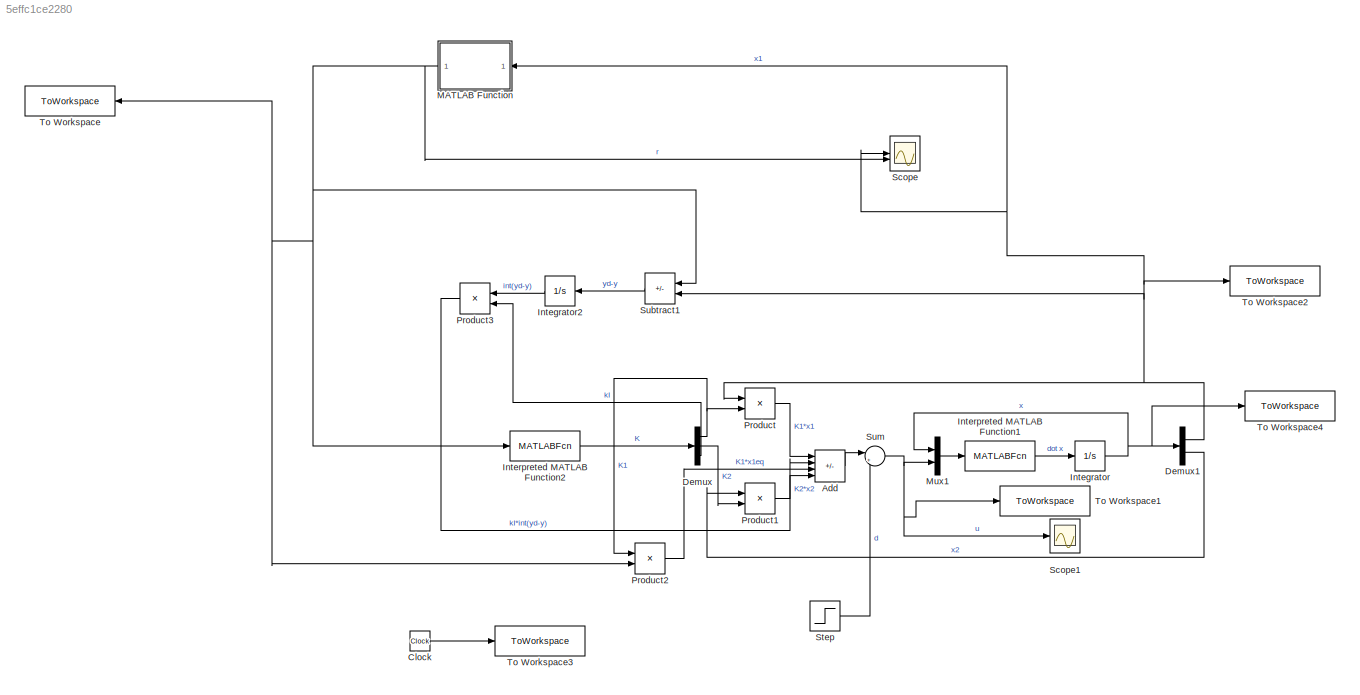
MODEL slx_5effc1ce2280
KIND model
CONFIG AbsTol = auto
CONFIG EnableMultiTasking = off
CONFIG FixedStep = auto
CONFIG MaxStep = auto
CONFIG MinStep = auto
CONFIG RelTol = 1e-3
CONFIG SampleTimeConstraint = Unconstrained
CONFIG SolverName = VariableStepAuto
CONFIG StartTime = 0.0
CONFIG StopTime = 10.0
BLOCK [Sum] Add
  IconShape = rectangular
  Inputs = --+-
BLOCK [Clock] Clock
BLOCK [Demux] Demux
  Outputs = 3
BLOCK [Demux] Demux1
  Outputs = 2
BLOCK [Integrator] Integrator
BLOCK [Integrator] Integrator2
  NameLocation = top
BLOCK [MATLABFcn] Interpreted MATLAB Function1
  MATLABFcn = GS_sys
  OutputDimensions = 2
BLOCK [MATLABFcn] Interpreted MATLAB Function2
  MATLABFcn = GS_compute_gains_LQI
  OutputDimensions = 3
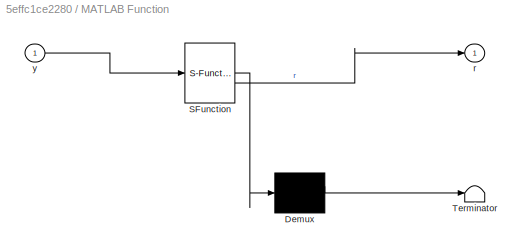
BLOCK [SubSystem] MATLAB Function
  ErrorFcn = Stateflow.Translate.translate
  NameLocation = top
  PermitHierarchicalResolution = ExplicitOnly
  SFBlockType = MATLAB Function
  TreatAsAtomicUnit = on
BLOCK [Demux] MATLAB Function/ Demux 
  Outputs = 1
BLOCK [S-Function] MATLAB Function/ SFunction 
  EnableBusSupport = on
  FunctionName = sf_sfun
  PortCounts = [1 2]
  SFcnIsStateOwnerBlock = off
  SFunctionDeploymentMode = off
  Tag = Stateflow S-Function 2
BLOCK [Terminator] MATLAB Function/ Terminator 
BLOCK [Outport] MATLAB Function/r
BLOCK [Inport] MATLAB Function/y
BLOCK [Mux] Mux1
  DisplayOption = bar
  Inputs = 2
BLOCK [Product] Product
BLOCK [Product] Product1
BLOCK [Product] Product2
BLOCK [Product] Product3
  NameLocation = top
BLOCK [Scope] Scope
  Floating = off
  NumInputPorts = 2
  ScopeSpecificationString = Simulink.scopes.TimeScopeBlockCfg('CurrentConfiguration', extmgr.ConfigurationSet(extmgr.Configuration('Core','General UI',true),extmgr.Configuration('Core','Source UI',true),extmgr.Configuration('Sources','WiredSimulink',true,'DataLoggingVariableName','ScopeData1'),extmgr.Configuration('Visuals','Time Domain',true,'SerializedDisplays',{struct('MinYLimReal','-20.98638','MaxYLimReal','123.03633','Y...<+1470ch>
BLOCK [Scope] Scope1
  Floating = off
  NumInputPorts = 1
  ScopeSpecificationString = Simulink.scopes.TimeScopeBlockCfg('CurrentConfiguration', extmgr.ConfigurationSet(extmgr.Configuration('Core','General UI',true),extmgr.Configuration('Core','Source UI',true),extmgr.Configuration('Sources','WiredSimulink',true),extmgr.Configuration('Visuals','Time Domain',true,'SerializedDisplays',{struct('MinYLimReal','-13.8979','MaxYLimReal','38.36756','YLabelReal','','MinYLimMag','0.00000','Max...<+1356ch>
BLOCK [Step] Step
  After = 350
  SampleTime = 0
  Time = 5
BLOCK [Sum] Subtract1
  IconShape = rectangular
  Inputs = +-
  NameLocation = top
BLOCK [Sum] Sum
  Inputs = |++
BLOCK [ToWorkspace] To Workspace
  FixptAsFi = on
  MaxDataPoints = inf
  SampleTime = -1
  VariableName = r
BLOCK [ToWorkspace] To Workspace1
  FixptAsFi = on
  MaxDataPoints = inf
  SampleTime = -1
  VariableName = u
BLOCK [ToWorkspace] To Workspace2
  FixptAsFi = on
  MaxDataPoints = inf
  SampleTime = -1
  VariableName = y
BLOCK [ToWorkspace] To Workspace3
  FixptAsFi = on
  MaxDataPoints = inf
  SampleTime = -1
  VariableName = t
BLOCK [ToWorkspace] To Workspace4
  FixptAsFi = on
  MaxDataPoints = inf
  SampleTime = -1
  VariableName = x
LINE Add:1 -> Sum:1
LINE Clock:1 -> To Workspace3:1
NET Demux1:1 -> MATLAB Function:1, Product:1, Scope:1, Subtract1:2, To Workspace2:1
LINE Demux1:2 -> Product1:1
NET Demux:1 -> Product2:1, Product:2
LINE Demux:2 -> Product1:2
LINE Demux:3 -> Product3:2
LINE Integrator2:1 -> Product3:1
NET Integrator:1 -> Demux1:1, Mux1:1, To Workspace4:1
LINE Interpreted MATLAB Function1:1 -> Integrator:1
LINE Interpreted MATLAB Function2:1 -> Demux:1
NET MATLAB Function:1 -> Interpreted MATLAB Function2:1, Product2:2, Scope:2, Subtract1:1, To Workspace:1
LINE Mux1:1 -> Interpreted MATLAB Function1:1
LINE Product1:1 -> Add:2
LINE Product2:1 -> Add:3
LINE Product3:1 -> Add:4
LINE Product:1 -> Add:1
LINE Step:1 -> Sum:2
LINE Subtract1:1 -> Integrator2:1
NET Sum:1 -> Mux1:2, Scope1:1, To Workspace1:1
note: NET lines group one-source signal fan-out (src -> all destinations, sorted); 1:1 wires keep LINE
CHART MATLAB Function states=1 transitions=1
  STATE_LABEL 'eML_blk_kernel()'
  STATE_LABEL 'SCRIPT:\nfunction r = fcn(y)\n    if(y==0)\n        r=pi;\n    else\n        r=fix(y/(2*pi))*2*pi + pi*sign(y);\n    end\nend\n\n\n'
CHART  states=0 transitions=0
